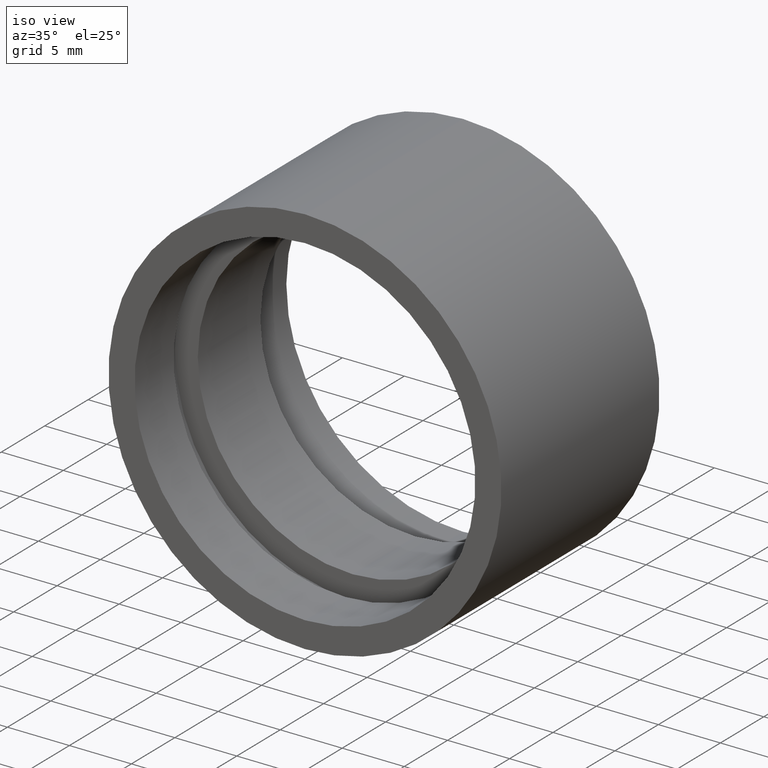
[diagram: clean part render]
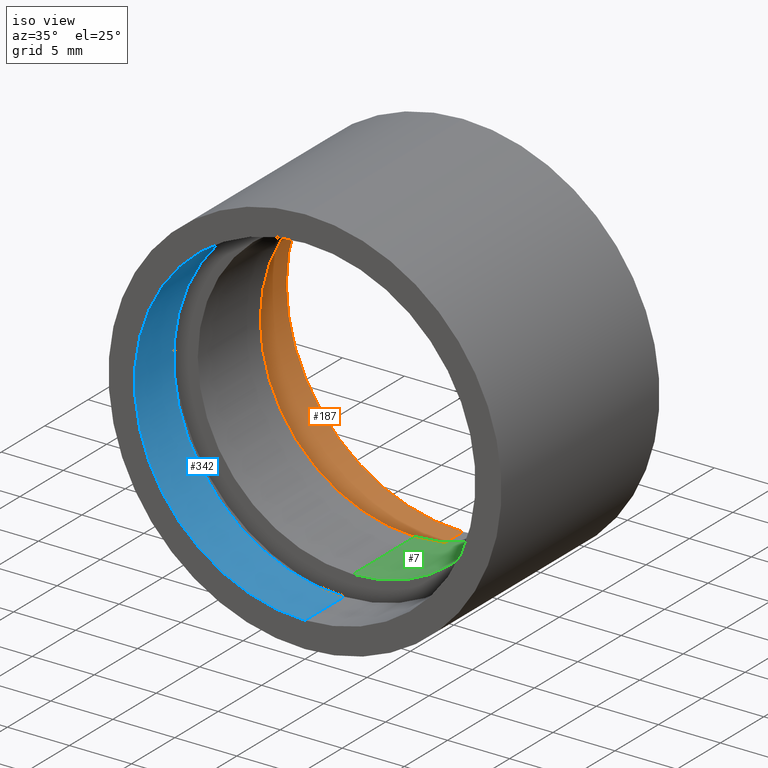
[diagram: same view with three faces highlighted in distinct colors, each labeled with its STEP entity id]
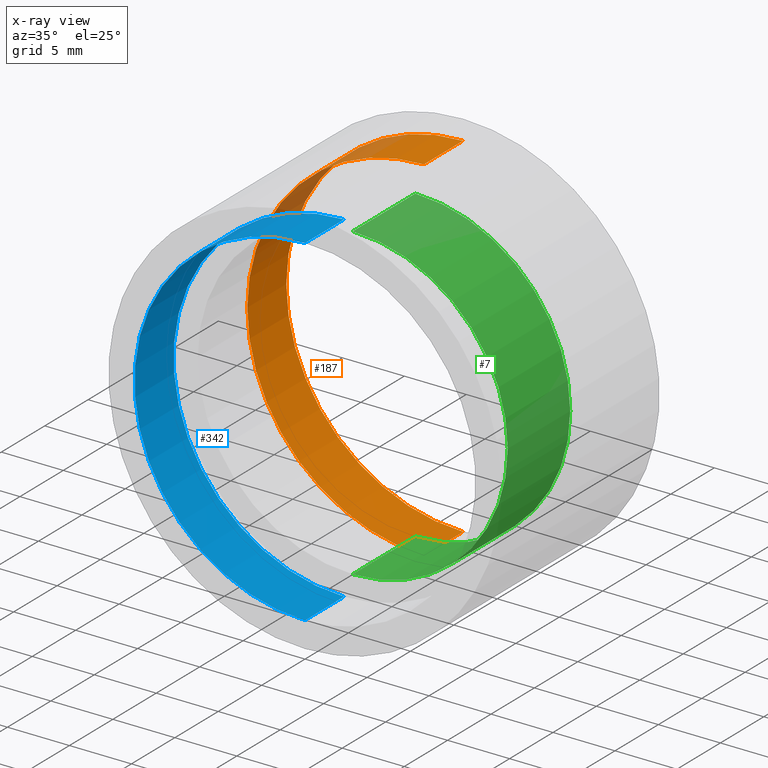
[diagram: x-ray of the same camera — body ghosted, the three highlighted faces saturated]
A machine part, iso view with three faces highlighted in distinct colors.
The next image is the same camera in x-ray (body ghosted, the three faces saturated) — at least one of them is partly hidden behind the body in this view.
Their STEP definitions:

[orange] entity #187 — the highlighted cylindrical surface (partial cylindrical patch) has radius 14.25 mm, axis along (-0, 1, -0).
#8 = DIRECTION ( 'NONE',  ( -0.0000000000000000000, 1.000000000000000000, -0.0000000000000000000 ) ) ;
#11 = DIRECTION ( 'NONE',  ( -0.0000000000000000000, 1.000000000000000000, -0.0000000000000000000 ) ) ;
#18 = VERTEX_POINT ( 'NONE', #609 ) ;
#35 = DIRECTION ( 'NONE',  ( 0.0000000000000000000, 0.0000000000000000000, 1.000000000000000000 ) ) ;
#43 = FACE_OUTER_BOUND ( 'NONE', #216, .T. ) ;
#65 = VERTEX_POINT ( 'NONE', #476 ) ;
#70 = CIRCLE ( 'NONE', #563, 14.25000000000001800 ) ;
#90 = VERTEX_POINT ( 'NONE', #234 ) ;
#142 = DIRECTION ( 'NONE',  ( -0.0000000000000000000, 1.000000000000000000, -0.0000000000000000000 ) ) ;
#158 = LINE ( 'NONE', #230, #622 ) ;
#161 = LINE ( 'NONE', #238, #380 ) ;
#179 = EDGE_CURVE ( 'NONE', #513, #65, #70, .T. ) ;
#187 = ADVANCED_FACE ( 'NONE', ( #43 ), #543, .F. ) ;
#216 = EDGE_LOOP ( 'NONE', ( #593, #512, #410, #412 ) ) ;
#224 = DIRECTION ( 'NONE',  ( -0.0000000000000000000, 1.000000000000000000, -0.0000000000000000000 ) ) ;
#226 = CARTESIAN_POINT ( 'NONE',  ( 1.745121688784980600E-015, 13.69999999999999000, -14.25000000000001800 ) ) ;
#230 = CARTESIAN_POINT ( 'NONE',  ( 1.745121688784980600E-015, 161.3761669434274500, -14.25000000000001800 ) ) ;
#234 = CARTESIAN_POINT ( 'NONE',  ( 0.0000000000000000000, 18.19999999999999600, 14.25000000000001800 ) ) ;
#238 = CARTESIAN_POINT ( 'NONE',  ( 0.0000000000000000000, 161.3761669434274500, 14.25000000000001800 ) ) ;
#339 = CIRCLE ( 'NONE', #518, 14.25000000000001800 ) ;
#348 = AXIS2_PLACEMENT_3D ( 'NONE', #586, #8, #436 ) ;
#380 = VECTOR ( 'NONE', #536, 1000.000000000000000 ) ;
#402 = DIRECTION ( 'NONE',  ( 0.0000000000000000000, 0.0000000000000000000, 1.000000000000000000 ) ) ;
#410 = ORIENTED_EDGE ( 'NONE', *, *, #413, .T. ) ;
#412 = ORIENTED_EDGE ( 'NONE', *, *, #472, .F. ) ;
#413 = EDGE_CURVE ( 'NONE', #18, #90, #339, .T. ) ;
#418 = CARTESIAN_POINT ( 'NONE',  ( 0.0000000000000000000, 18.19999999999999600, 0.0000000000000000000 ) ) ;
#436 = DIRECTION ( 'NONE',  ( 0.0000000000000000000, 0.0000000000000000000, 1.000000000000000000 ) ) ;
#472 = EDGE_CURVE ( 'NONE', #65, #90, #161, .T. ) ;
#476 = CARTESIAN_POINT ( 'NONE',  ( 0.0000000000000000000, 13.69999999999999000, 14.25000000000001800 ) ) ;
#494 = CARTESIAN_POINT ( 'NONE',  ( 0.0000000000000000000, 13.69999999999999000, 0.0000000000000000000 ) ) ;
#512 = ORIENTED_EDGE ( 'NONE', *, *, #603, .T. ) ;
#513 = VERTEX_POINT ( 'NONE', #226 ) ;
#518 = AXIS2_PLACEMENT_3D ( 'NONE', #418, #224, #35 ) ;
#536 = DIRECTION ( 'NONE',  ( -0.0000000000000000000, 1.000000000000000000, -0.0000000000000000000 ) ) ;
#543 = CYLINDRICAL_SURFACE ( 'NONE', #348, 14.25000000000001800 ) ;
#563 = AXIS2_PLACEMENT_3D ( 'NONE', #494, #11, #402 ) ;
#586 = CARTESIAN_POINT ( 'NONE',  ( 0.0000000000000000000, 161.3761669434274500, 0.0000000000000000000 ) ) ;
#593 = ORIENTED_EDGE ( 'NONE', *, *, #179, .F. ) ;
#603 = EDGE_CURVE ( 'NONE', #513, #18, #158, .T. ) ;
#609 = CARTESIAN_POINT ( 'NONE',  ( 1.745121688784980600E-015, 18.19999999999999600, -14.25000000000001800 ) ) ;
#622 = VECTOR ( 'NONE', #142, 1000.000000000000000 ) ;

[blue] entity #342 — the highlighted cylindrical surface (partial cylindrical patch) has radius 13.75 mm, axis along (-0, 1, -0).
#1 = EDGE_CURVE ( 'NONE', #546, #177, #510, .T. ) ;
#3 = CIRCLE ( 'NONE', #153, 13.75000000000002100 ) ;
#13 = CARTESIAN_POINT ( 'NONE',  ( 0.0000000000000000000, -2.775557561562891400E-014, 13.75000000000002100 ) ) ;
#22 = DIRECTION ( 'NONE',  ( 0.0000000000000000000, 0.0000000000000000000, 1.000000000000000000 ) ) ;
#31 = DIRECTION ( 'NONE',  ( -0.0000000000000000000, 1.000000000000000000, -0.0000000000000000000 ) ) ;
#53 = CARTESIAN_POINT ( 'NONE',  ( 1.683889348827613200E-015, 4.499999999999976000, -13.75000000000002100 ) ) ;
#80 = FACE_OUTER_BOUND ( 'NONE', #576, .T. ) ;
#87 = CARTESIAN_POINT ( 'NONE',  ( 0.0000000000000000000, 4.499999999999976000, 13.75000000000002100 ) ) ;
#99 = LINE ( 'NONE', #354, #557 ) ;
#116 = CARTESIAN_POINT ( 'NONE',  ( 0.0000000000000000000, -2.775557561562891400E-014, 0.0000000000000000000 ) ) ;
#153 = AXIS2_PLACEMENT_3D ( 'NONE', #116, #31, #362 ) ;
#177 = VERTEX_POINT ( 'NONE', #53 ) ;
#204 = VERTEX_POINT ( 'NONE', #13 ) ;
#206 = DIRECTION ( 'NONE',  ( -0.0000000000000000000, 1.000000000000000000, -0.0000000000000000000 ) ) ;
#207 = CARTESIAN_POINT ( 'NONE',  ( 0.0000000000000000000, 4.499999999999976000, 0.0000000000000000000 ) ) ;
#245 = CYLINDRICAL_SURFACE ( 'NONE', #485, 13.75000000000002100 ) ;
#271 = EDGE_CURVE ( 'NONE', #177, #621, #551, .T. ) ;
#274 = VECTOR ( 'NONE', #614, 1000.000000000000000 ) ;
#317 = CARTESIAN_POINT ( 'NONE',  ( 0.0000000000000000000, 161.3761669434274500, 0.0000000000000000000 ) ) ;
#321 = EDGE_CURVE ( 'NONE', #204, #621, #99, .T. ) ;
#328 = EDGE_CURVE ( 'NONE', #546, #204, #3, .T. ) ;
#342 = ADVANCED_FACE ( 'NONE', ( #80 ), #245, .F. ) ;
#347 = ORIENTED_EDGE ( 'NONE', *, *, #1, .T. ) ;
#354 = CARTESIAN_POINT ( 'NONE',  ( 0.0000000000000000000, 161.3761669434274500, 13.75000000000002100 ) ) ;
#362 = DIRECTION ( 'NONE',  ( 0.0000000000000000000, 0.0000000000000000000, 1.000000000000000000 ) ) ;
#414 = DIRECTION ( 'NONE',  ( -0.0000000000000000000, 1.000000000000000000, -0.0000000000000000000 ) ) ;
#438 = ORIENTED_EDGE ( 'NONE', *, *, #328, .F. ) ;
#457 = DIRECTION ( 'NONE',  ( 0.0000000000000000000, 0.0000000000000000000, 1.000000000000000000 ) ) ;
#485 = AXIS2_PLACEMENT_3D ( 'NONE', #317, #414, #457 ) ;
#497 = ORIENTED_EDGE ( 'NONE', *, *, #271, .T. ) ;
#510 = LINE ( 'NONE', #514, #274 ) ;
#514 = CARTESIAN_POINT ( 'NONE',  ( 1.683889348827613200E-015, 161.3761669434274500, -13.75000000000002100 ) ) ;
#546 = VERTEX_POINT ( 'NONE', #574 ) ;
#549 = DIRECTION ( 'NONE',  ( -0.0000000000000000000, 1.000000000000000000, -0.0000000000000000000 ) ) ;
#551 = CIRCLE ( 'NONE', #620, 13.75000000000002100 ) ;
#557 = VECTOR ( 'NONE', #206, 1000.000000000000000 ) ;
#574 = CARTESIAN_POINT ( 'NONE',  ( 1.683889348827613200E-015, -2.775557561562891400E-014, -13.75000000000002100 ) ) ;
#576 = EDGE_LOOP ( 'NONE', ( #438, #347, #497, #592 ) ) ;
#592 = ORIENTED_EDGE ( 'NONE', *, *, #321, .F. ) ;
#614 = DIRECTION ( 'NONE',  ( -0.0000000000000000000, 1.000000000000000000, -0.0000000000000000000 ) ) ;
#620 = AXIS2_PLACEMENT_3D ( 'NONE', #207, #549, #22 ) ;
#621 = VERTEX_POINT ( 'NONE', #87 ) ;

[green] entity #7 — the highlighted cylindrical surface (partial cylindrical patch) has radius 12.5 mm, axis along (-0, 1, -0).
#7 = ADVANCED_FACE ( 'NONE', ( #432 ), #371, .F. ) ;
#16 = VECTOR ( 'NONE', #78, 1000.000000000000000 ) ;
#30 = AXIS2_PLACEMENT_3D ( 'NONE', #407, #594, #112 ) ;
#37 = DIRECTION ( 'NONE',  ( -0.0000000000000000000, 1.000000000000000000, -0.0000000000000000000 ) ) ;
#74 = ORIENTED_EDGE ( 'NONE', *, *, #300, .F. ) ;
#75 = VERTEX_POINT ( 'NONE', #223 ) ;
#77 = CARTESIAN_POINT ( 'NONE',  ( 0.0000000000000000000, 161.3761669434274500, 0.0000000000000000000 ) ) ;
#78 = DIRECTION ( 'NONE',  ( -0.0000000000000000000, 1.000000000000000000, -0.0000000000000000000 ) ) ;
#83 = ORIENTED_EDGE ( 'NONE', *, *, #390, .T. ) ;
#102 = VECTOR ( 'NONE', #178, 1000.000000000000000 ) ;
#107 = VERTEX_POINT ( 'NONE', #240 ) ;
#112 = DIRECTION ( 'NONE',  ( 0.0000000000000000000, 0.0000000000000000000, 1.000000000000000000 ) ) ;
#137 = CARTESIAN_POINT ( 'NONE',  ( 1.530808498934193900E-015, 12.69999999999998900, -12.50000000000002000 ) ) ;
#174 = CARTESIAN_POINT ( 'NONE',  ( 1.530808498934193900E-015, 161.3761669434274500, -12.50000000000002000 ) ) ;
#178 = DIRECTION ( 'NONE',  ( -0.0000000000000000000, 1.000000000000000000, -0.0000000000000000000 ) ) ;
#220 = CIRCLE ( 'NONE', #30, 12.50000000000002000 ) ;
#223 = CARTESIAN_POINT ( 'NONE',  ( 0.0000000000000000000, 12.69999999999998900, 12.50000000000002000 ) ) ;
#240 = CARTESIAN_POINT ( 'NONE',  ( 0.0000000000000000000, 5.499999999999976900, 12.50000000000002000 ) ) ;
#254 = CIRCLE ( 'NONE', #266, 12.50000000000002000 ) ;
#266 = AXIS2_PLACEMENT_3D ( 'NONE', #285, #617, #577 ) ;
#275 = EDGE_LOOP ( 'NONE', ( #533, #74, #83, #425 ) ) ;
#285 = CARTESIAN_POINT ( 'NONE',  ( 0.0000000000000000000, 12.69999999999998900, 0.0000000000000000000 ) ) ;
#300 = EDGE_CURVE ( 'NONE', #107, #454, #220, .T. ) ;
#330 = CARTESIAN_POINT ( 'NONE',  ( 0.0000000000000000000, 161.3761669434274500, 12.50000000000002000 ) ) ;
#369 = DIRECTION ( 'NONE',  ( 0.0000000000000000000, 0.0000000000000000000, 1.000000000000000000 ) ) ;
#371 = CYLINDRICAL_SURFACE ( 'NONE', #461, 12.50000000000002000 ) ;
#390 = EDGE_CURVE ( 'NONE', #107, #75, #442, .T. ) ;
#407 = CARTESIAN_POINT ( 'NONE',  ( 0.0000000000000000000, 5.499999999999976900, 0.0000000000000000000 ) ) ;
#425 = ORIENTED_EDGE ( 'NONE', *, *, #615, .T. ) ;
#430 = EDGE_CURVE ( 'NONE', #454, #523, #607, .T. ) ;
#432 = FACE_OUTER_BOUND ( 'NONE', #275, .T. ) ;
#442 = LINE ( 'NONE', #330, #16 ) ;
#454 = VERTEX_POINT ( 'NONE', #610 ) ;
#461 = AXIS2_PLACEMENT_3D ( 'NONE', #77, #37, #369 ) ;
#523 = VERTEX_POINT ( 'NONE', #137 ) ;
#533 = ORIENTED_EDGE ( 'NONE', *, *, #430, .F. ) ;
#577 = DIRECTION ( 'NONE',  ( 0.0000000000000000000, 0.0000000000000000000, 1.000000000000000000 ) ) ;
#594 = DIRECTION ( 'NONE',  ( -0.0000000000000000000, 1.000000000000000000, -0.0000000000000000000 ) ) ;
#607 = LINE ( 'NONE', #174, #102 ) ;
#610 = CARTESIAN_POINT ( 'NONE',  ( 1.530808498934193900E-015, 5.499999999999976900, -12.50000000000002000 ) ) ;
#615 = EDGE_CURVE ( 'NONE', #75, #523, #254, .T. ) ;
#617 = DIRECTION ( 'NONE',  ( -0.0000000000000000000, 1.000000000000000000, -0.0000000000000000000 ) ) ;